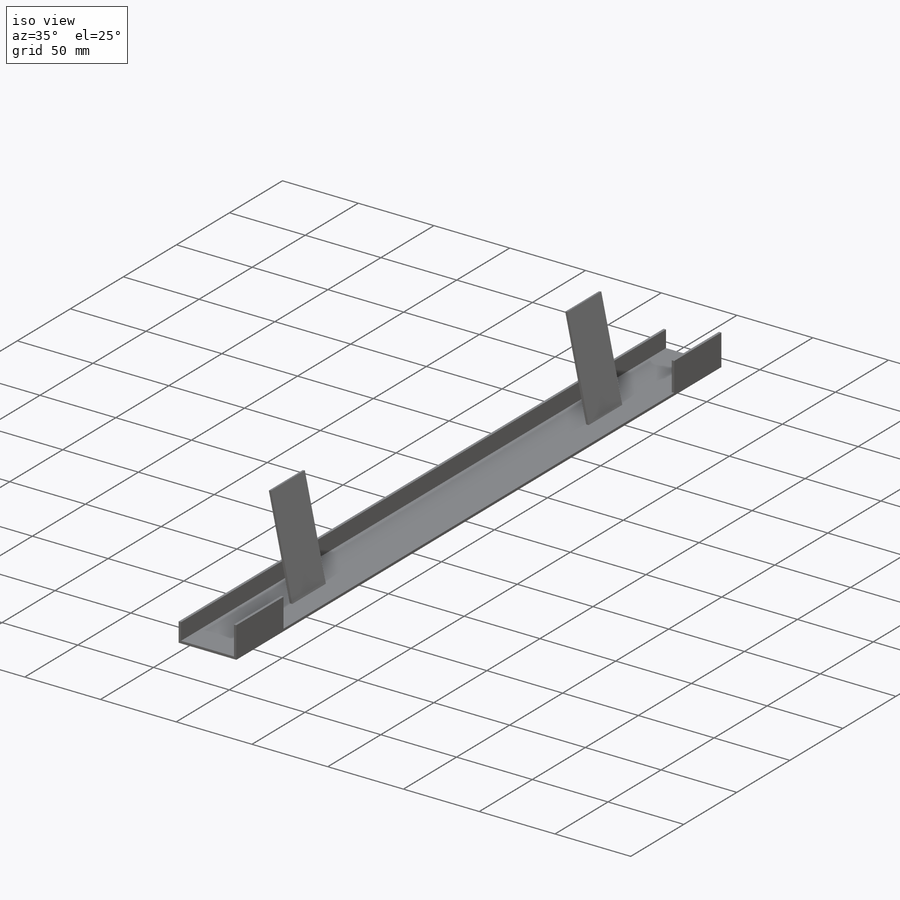
[diagram: iso view]
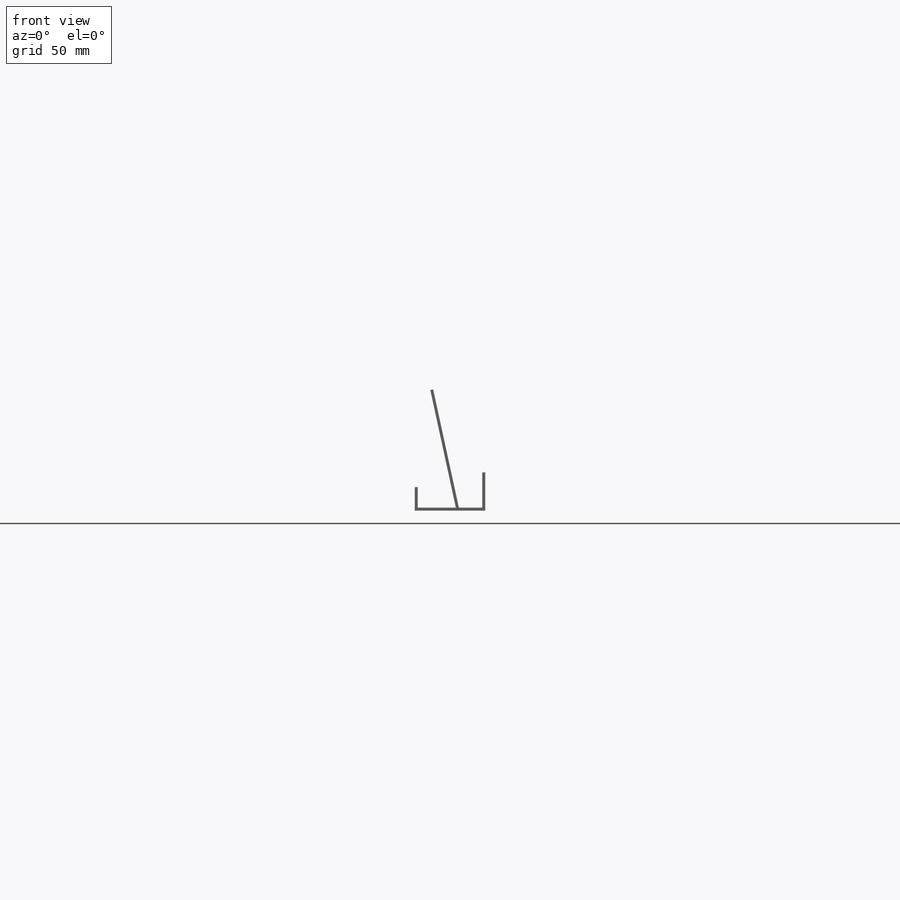
[diagram: front view]
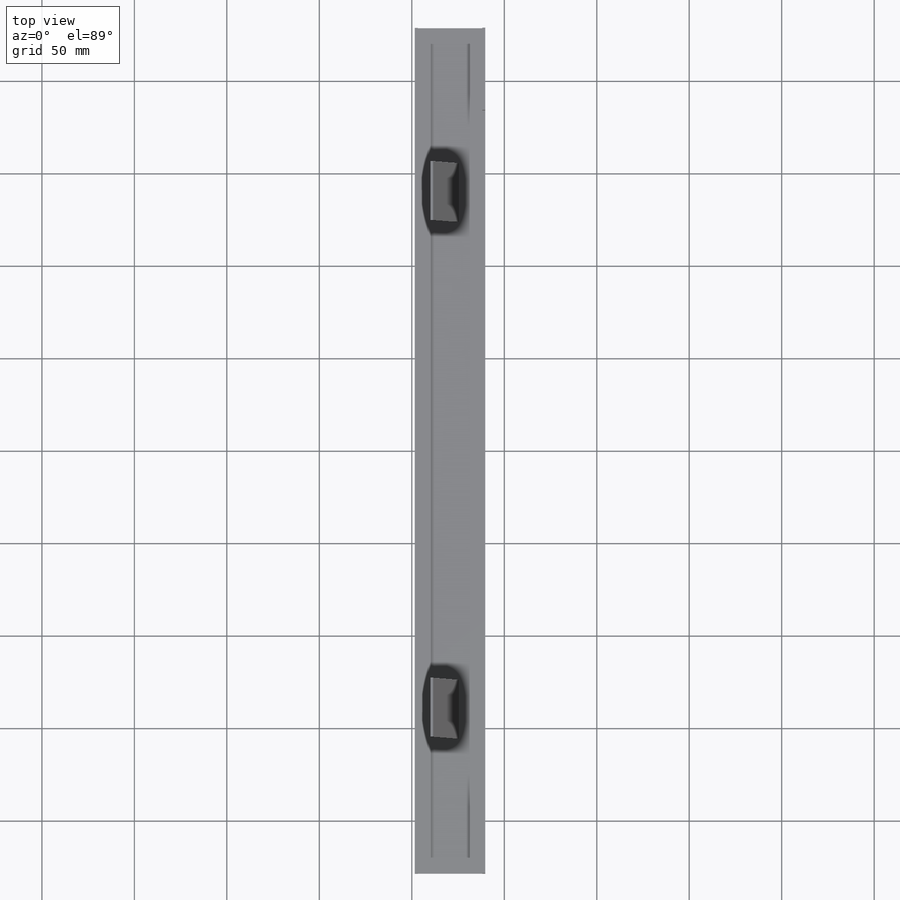
[diagram: top view]
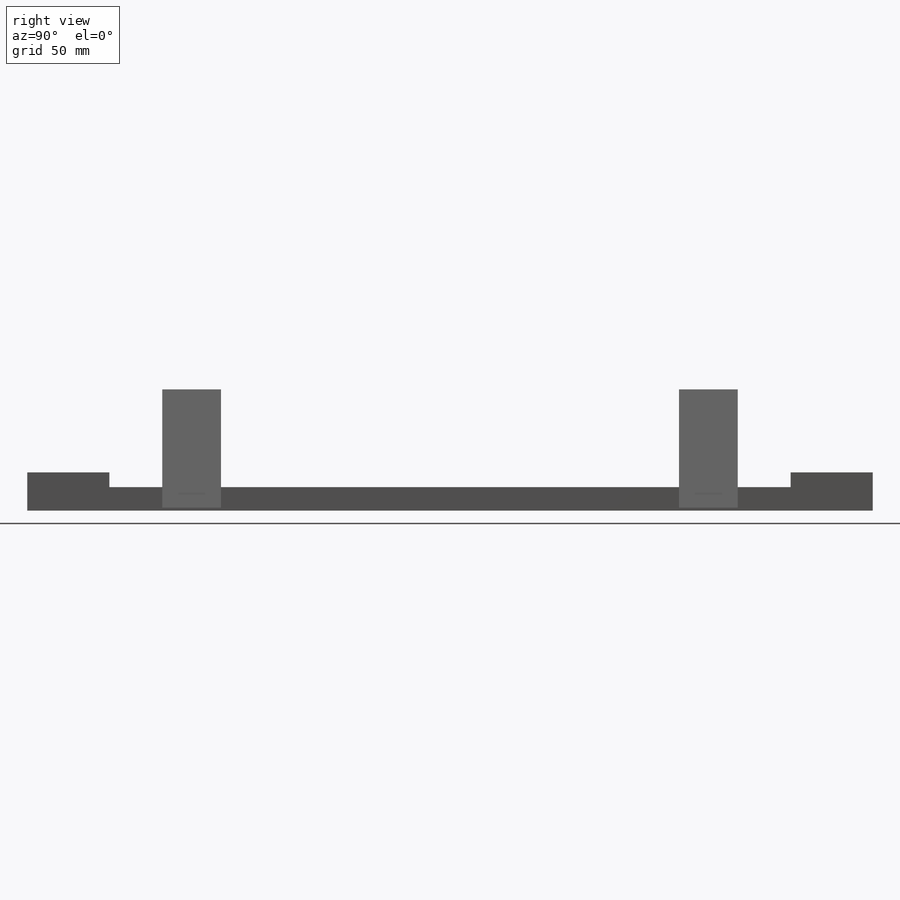
[diagram: right view]
SOLIDWORKS PART (.sldprt)
format: sldprt  version: not decoded by parser v0  size: 269,824 bytes
history: native  units: mm
features: sketch x6, cut_extrude x4, material x1, extrude x1 (+15 scaffold rows collapsed)
feature tree (27):
  scaffold x15  (default folders/planes/origin — collapsed)
  material  "Material <not specified>"
  sketch  "Sketch1"
  sketch  "Sketch2"
  extrude  "Extrude1"  Depth=457.2mm
  sketch  "Sketch3"
  cut_extrude  "Cut-Extrude1"  Depth=247.65mm
  sketch  "Sketch4"
  cut_extrude  "Cut-Extrude2"  Depth=73.025mm
  sketch  "Sketch5"
  cut_extrude  "Cut-Extrude3"  Depth=73.025mm
  sketch  "Sketch6"
  cut_extrude  "Cut-Extrude4"  Depth=368.3mm
decode coverage: 5 of 11 modeling features carry decoded parameters
note: suppression state not decoded; provenance and decode notes live in map.json
